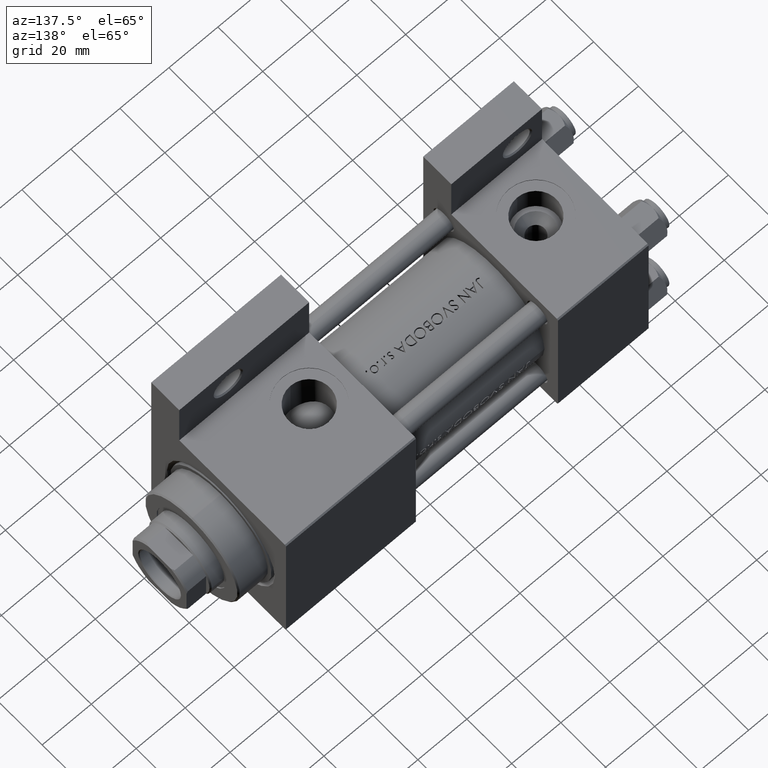
[diagram: clean part render]
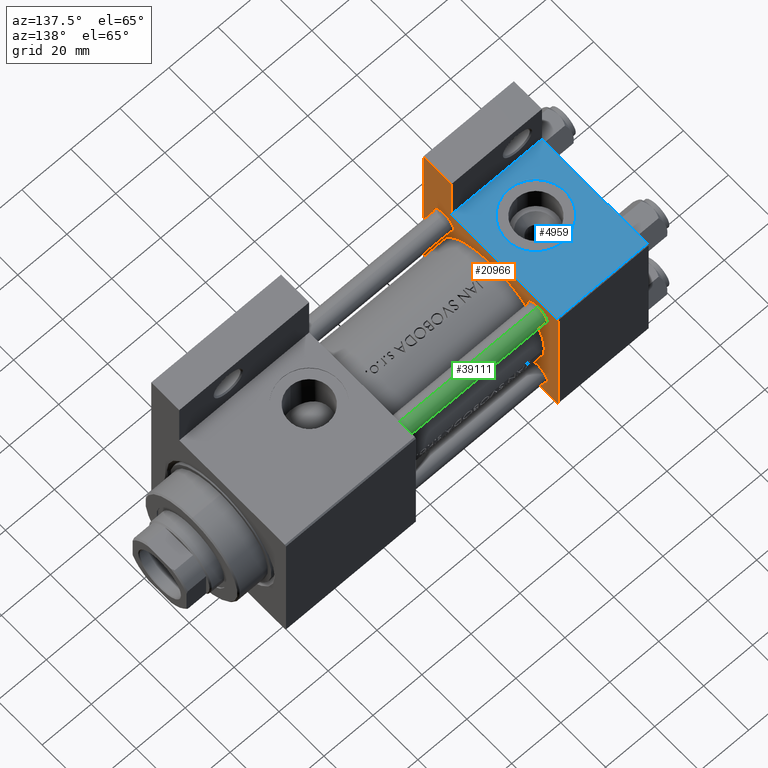
[diagram: same view with three faces highlighted in distinct colors, each labeled with its STEP entity id]
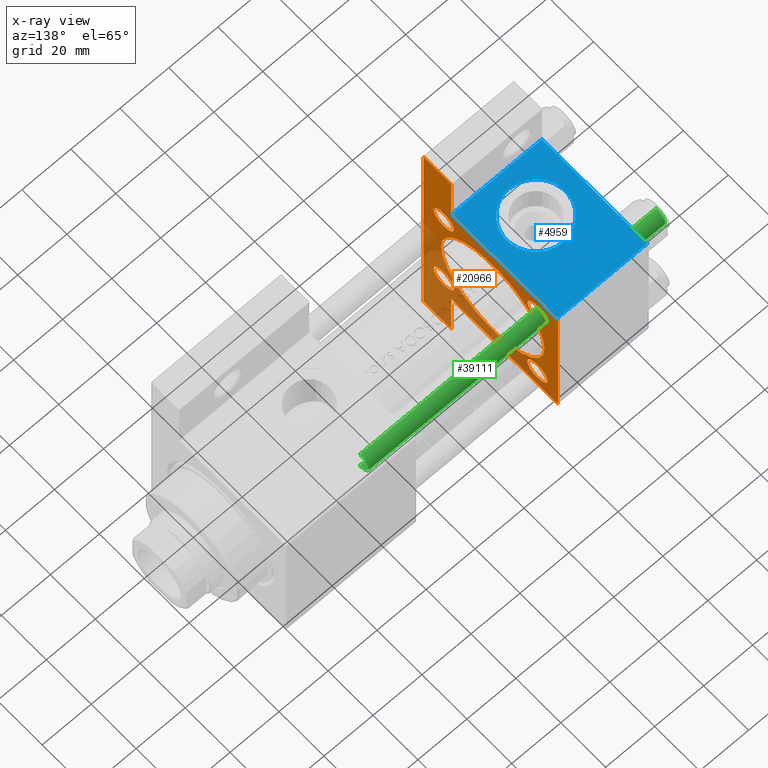
[diagram: x-ray of the same camera — body ghosted, the three highlighted faces saturated]
A machine part, auxiliary view with three faces highlighted in distinct colors.
The next image is the same camera in x-ray (body ghosted, the three faces saturated) — at least one of them is partly hidden behind the body in this view.
Their STEP definitions:

[orange] entity #20966 — the highlighted planar face has unit normal (-1, 0, -0).
#366 = DIRECTION ( 'NONE',  ( 0.000000000000000000, -1.000000000000000000, -1.156482317317871725E-16 ) ) ;
#448 = ORIENTED_EDGE ( 'NONE', *, *, #23480, .T. ) ;
#936 = CARTESIAN_POINT ( 'NONE',  ( 37.00000000000000000, -20.84999999999999076, 16.35000000000001208 ) ) ;
#1065 = EDGE_CURVE ( 'NONE', #37120, #42292, #45849, .T. ) ;
#1447 = ORIENTED_EDGE ( 'NONE', *, *, #14465, .F. ) ;
#1640 = ORIENTED_EDGE ( 'NONE', *, *, #28893, .T. ) ;
#1767 = DIRECTION ( 'NONE',  ( -1.000000000000000000, 0.000000000000000000, -0.000000000000000000 ) ) ;
#2316 = AXIS2_PLACEMENT_3D ( 'NONE', #21296, #13860, #7329 ) ;
#2422 = CIRCLE ( 'NONE', #31610, 4.499999999999990230 ) ;
#2638 = CARTESIAN_POINT ( 'NONE',  ( 37.00000000000000000, 29.49999999999999289, 30.00000000000000000 ) ) ;
#2811 = FACE_OUTER_BOUND ( 'NONE', #10163, .T. ) ;
#2879 = VERTEX_POINT ( 'NONE', #936 ) ;
#3173 = CIRCLE ( 'NONE', #7005, 4.499999999999990230 ) ;
#3615 = DIRECTION ( 'NONE',  ( -1.000000000000000000, 0.000000000000000000, -0.000000000000000000 ) ) ;
#4558 = EDGE_CURVE ( 'NONE', #40959, #44547, #25100, .T. ) ;
#4567 = CIRCLE ( 'NONE', #31481, 4.499999999999990230 ) ;
#4616 = ORIENTED_EDGE ( 'NONE', *, *, #37374, .T. ) ;
#5135 = DIRECTION ( 'NONE',  ( 0.000000000000000000, 0.000000000000000000, 1.000000000000000000 ) ) ;
#5636 = VERTEX_POINT ( 'NONE', #31811 ) ;
#5768 = VERTEX_POINT ( 'NONE', #36833 ) ;
#6644 = ORIENTED_EDGE ( 'NONE', *, *, #21083, .T. ) ;
#6896 = CARTESIAN_POINT ( 'NONE',  ( 37.00000000000000000, -30.00000000000000000, 29.49999999999999289 ) ) ;
#6970 = CIRCLE ( 'NONE', #33885, 23.00000000000000000 ) ;
#7005 = AXIS2_PLACEMENT_3D ( 'NONE', #33782, #44132, #36666 ) ;
#7036 = VECTOR ( 'NONE', #15321, 1000.000000000000000 ) ;
#7329 = DIRECTION ( 'NONE',  ( 0.000000000000000000, 0.000000000000000000, 1.000000000000000000 ) ) ;
#7609 = FACE_BOUND ( 'NONE', #26831, .T. ) ;
#7740 = CIRCLE ( 'NONE', #24639, 4.499999999999990230 ) ;
#8376 = ORIENTED_EDGE ( 'NONE', *, *, #20503, .T. ) ;
#8515 = LINE ( 'NONE', #31128, #17537 ) ;
#9467 = VECTOR ( 'NONE', #15573, 1000.000000000000000 ) ;
#9511 = CARTESIAN_POINT ( 'NONE',  ( 37.00000000000000000, 29.99999999999999289, 30.00000000000000000 ) ) ;
#9803 = ORIENTED_EDGE ( 'NONE', *, *, #47216, .F. ) ;
#10163 = EDGE_LOOP ( 'NONE', ( #25890, #448, #29003, #9803, #1640, #16156, #25317, #1447, #34053, #8376 ) ) ;
#10615 = DIRECTION ( 'NONE',  ( 0.000000000000000000, 0.000000000000000000, 1.000000000000000000 ) ) ;
#10722 = EDGE_LOOP ( 'NONE', ( #14657, #14529 ) ) ;
#11083 = AXIS2_PLACEMENT_3D ( 'NONE', #14235, #28909, #10615 ) ;
#12270 = CARTESIAN_POINT ( 'NONE',  ( 37.00000000000000000, 20.84999999999999787, -20.85000000000000142 ) ) ;
#12651 = CARTESIAN_POINT ( 'NONE',  ( 37.00000000000001421, 51.50000000000000711, 25.29310692155923590 ) ) ;
#12743 = DIRECTION ( 'NONE',  ( 0.000000000000000000, 0.000000000000000000, 1.000000000000000000 ) ) ;
#12892 = DIRECTION ( 'NONE',  ( -1.000000000000000000, 0.000000000000000000, -0.000000000000000000 ) ) ;
#13207 = CARTESIAN_POINT ( 'NONE',  ( 37.00000000000001421, 51.50000000000000000, -30.00000000000001421 ) ) ;
#13226 = AXIS2_PLACEMENT_3D ( 'NONE', #40036, #36675, #21765 ) ;
#13822 = VECTOR ( 'NONE', #20887, 1000.000000000000000 ) ;
#13860 = DIRECTION ( 'NONE',  ( -1.000000000000000000, 0.000000000000000000, -0.000000000000000000 ) ) ;
#13896 = CARTESIAN_POINT ( 'NONE',  ( 37.00000000000000000, 0.000000000000000000, 0.000000000000000000 ) ) ;
#14235 = CARTESIAN_POINT ( 'NONE',  ( 37.00000000000000000, -20.84999999999999076, -20.85000000000000497 ) ) ;
#14412 = VERTEX_POINT ( 'NONE', #45082 ) ;
#14465 = EDGE_CURVE ( 'NONE', #29213, #42498, #8515, .T. ) ;
#14529 = ORIENTED_EDGE ( 'NONE', *, *, #30167, .T. ) ;
#14535 = CARTESIAN_POINT ( 'NONE',  ( 37.00000000000000000, 0.000000000000000000, 1.000000000000000888 ) ) ;
#14657 = ORIENTED_EDGE ( 'NONE', *, *, #42607, .T. ) ;
#15321 = DIRECTION ( 'NONE',  ( 0.000000000000000000, -1.734723475976807094E-16, -1.000000000000000000 ) ) ;
#15483 = VERTEX_POINT ( 'NONE', #31192 ) ;
#15573 = DIRECTION ( 'NONE',  ( -0.000000000000000000, 1.000000000000000000, 0.000000000000000000 ) ) ;
#16135 = DIRECTION ( 'NONE',  ( -1.000000000000000000, 0.000000000000000000, -0.000000000000000000 ) ) ;
#16156 = ORIENTED_EDGE ( 'NONE', *, *, #21665, .F. ) ;
#16519 = CARTESIAN_POINT ( 'NONE',  ( 37.00000000000000000, 20.84999999999999787, -20.85000000000000142 ) ) ;
#16591 = CARTESIAN_POINT ( 'NONE',  ( 37.00000000000000000, 29.99999999999999289, -30.00000000000000000 ) ) ;
#17325 = ORIENTED_EDGE ( 'NONE', *, *, #35479, .T. ) ;
#17537 = VECTOR ( 'NONE', #45563, 1000.000000000000000 ) ;
#17640 = CARTESIAN_POINT ( 'NONE',  ( 37.00000000000000000, 29.49999999999999289, 30.00000000000000000 ) ) ;
#18120 = CARTESIAN_POINT ( 'NONE',  ( 37.00000000000000000, 2.816687638038911957E-15, -22.00000000000000000 ) ) ;
#18422 = ORIENTED_EDGE ( 'NONE', *, *, #40859, .T. ) ;
#18851 = EDGE_CURVE ( 'NONE', #46420, #28180, #21782, .T. ) ;
#19654 = CARTESIAN_POINT ( 'NONE',  ( 37.00000000000000000, 29.99999999999999289, 29.50000000000000000 ) ) ;
#20503 = EDGE_CURVE ( 'NONE', #21865, #46420, #35607, .T. ) ;
#20866 = CARTESIAN_POINT ( 'NONE',  ( 37.00000000000000000, 0.000000000000000000, 1.000000000000000888 ) ) ;
#20887 = DIRECTION ( 'NONE',  ( 0.000000000000000000, -1.000000000000000000, -1.156482317317871725E-16 ) ) ;
#20966 = ADVANCED_FACE ( 'NONE', ( #29278, #43948, #40558, #7609, #22294, #2811 ), #46853, .F. ) ;
#21077 = EDGE_CURVE ( 'NONE', #21865, #29213, #31884, .T. ) ;
#21083 = EDGE_CURVE ( 'NONE', #14412, #37954, #4567, .T. ) ;
#21128 = CARTESIAN_POINT ( 'NONE',  ( 37.00000000000000000, -30.00000000000000000, 29.49999999999999289 ) ) ;
#21296 = CARTESIAN_POINT ( 'NONE',  ( 37.00000000000000000, 20.84999999999999787, 20.85000000000000142 ) ) ;
#21583 = DIRECTION ( 'NONE',  ( -0.000000000000000000, -0.7071067811865474617, -0.7071067811865474617 ) ) ;
#21665 = EDGE_CURVE ( 'NONE', #35784, #27007, #27635, .T. ) ;
#21765 = DIRECTION ( 'NONE',  ( 0.000000000000000000, 0.000000000000000000, 1.000000000000000000 ) ) ;
#21782 = LINE ( 'NONE', #47535, #43681 ) ;
#21865 = VERTEX_POINT ( 'NONE', #19654 ) ;
#22229 = AXIS2_PLACEMENT_3D ( 'NONE', #13896, #28566, #43233 ) ;
#22294 = FACE_BOUND ( 'NONE', #35237, .T. ) ;
#22341 = AXIS2_PLACEMENT_3D ( 'NONE', #40167, #3615, #39453 ) ;
#22623 = CIRCLE ( 'NONE', #11083, 4.499999999999990230 ) ;
#23026 = VECTOR ( 'NONE', #46563, 1000.000000000000000 ) ;
#23480 = EDGE_CURVE ( 'NONE', #28180, #40959, #39847, .T. ) ;
#24639 = AXIS2_PLACEMENT_3D ( 'NONE', #12270, #16135, #12743 ) ;
#25094 = AXIS2_PLACEMENT_3D ( 'NONE', #14535, #44111, #25845 ) ;
#25100 = LINE ( 'NONE', #32087, #29563 ) ;
#25244 = EDGE_LOOP ( 'NONE', ( #4616, #43511 ) ) ;
#25317 = ORIENTED_EDGE ( 'NONE', *, *, #26519, .F. ) ;
#25421 = DIRECTION ( 'NONE',  ( 1.000000000000000000, -0.000000000000000000, 0.000000000000000000 ) ) ;
#25845 = DIRECTION ( 'NONE',  ( 0.000000000000000000, 0.000000000000000000, 1.000000000000000000 ) ) ;
#25890 = ORIENTED_EDGE ( 'NONE', *, *, #18851, .T. ) ;
#25892 = VERTEX_POINT ( 'NONE', #32573 ) ;
#26519 = EDGE_CURVE ( 'NONE', #42498, #35784, #37666, .T. ) ;
#26831 = EDGE_LOOP ( 'NONE', ( #31863, #17325 ) ) ;
#27007 = VERTEX_POINT ( 'NONE', #30581 ) ;
#27566 = DIRECTION ( 'NONE',  ( 0.000000000000000000, 0.000000000000000000, 1.000000000000000000 ) ) ;
#27635 = LINE ( 'NONE', #16591, #13822 ) ;
#28180 = VERTEX_POINT ( 'NONE', #43083 ) ;
#28384 = DIRECTION ( 'NONE',  ( 0.000000000000000000, -0.7071067811865474617, 0.7071067811865474617 ) ) ;
#28486 = CIRCLE ( 'NONE', #22341, 4.499999999999990230 ) ;
#28566 = DIRECTION ( 'NONE',  ( -1.000000000000000000, 0.000000000000000000, -0.000000000000000000 ) ) ;
#28653 = VECTOR ( 'NONE', #46479, 1000.000000000000000 ) ;
#28893 = EDGE_CURVE ( 'NONE', #5768, #27007, #30434, .T. ) ;
#28909 = DIRECTION ( 'NONE',  ( -1.000000000000000000, 0.000000000000000000, -0.000000000000000000 ) ) ;
#29003 = ORIENTED_EDGE ( 'NONE', *, *, #4558, .T. ) ;
#29213 = VERTEX_POINT ( 'NONE', #39413 ) ;
#29278 = FACE_BOUND ( 'NONE', #10722, .T. ) ;
#29563 = VECTOR ( 'NONE', #39755, 1000.000000000000000 ) ;
#30167 = EDGE_CURVE ( 'NONE', #38956, #25892, #22623, .T. ) ;
#30434 = LINE ( 'NONE', #42384, #28653 ) ;
#30581 = CARTESIAN_POINT ( 'NONE',  ( 37.00000000000000000, -51.50000000000000000, -29.99999999999999289 ) ) ;
#31128 = CARTESIAN_POINT ( 'NONE',  ( 37.00000000000001421, 51.50000000000000711, -17.49999999999999645 ) ) ;
#31192 = CARTESIAN_POINT ( 'NONE',  ( 37.00000000000000000, -20.84999999999999076, 25.34999999999999432 ) ) ;
#31481 = AXIS2_PLACEMENT_3D ( 'NONE', #16519, #12892, #27566 ) ;
#31610 = AXIS2_PLACEMENT_3D ( 'NONE', #38087, #1767, #5135 ) ;
#31811 = CARTESIAN_POINT ( 'NONE',  ( 37.00000000000000000, 20.84999999999999787, 25.34999999999999076 ) ) ;
#31863 = ORIENTED_EDGE ( 'NONE', *, *, #39389, .T. ) ;
#31884 = LINE ( 'NONE', #9511, #23026 ) ;
#32087 = CARTESIAN_POINT ( 'NONE',  ( 37.00000000000000000, -30.00000000000000000, 29.99999999999999289 ) ) ;
#32573 = CARTESIAN_POINT ( 'NONE',  ( 37.00000000000000000, -20.84999999999999076, -25.34999999999999432 ) ) ;
#33028 = VECTOR ( 'NONE', #28384, 1000.000000000000114 ) ;
#33422 = VERTEX_POINT ( 'NONE', #44368 ) ;
#33782 = CARTESIAN_POINT ( 'NONE',  ( 37.00000000000000000, 20.84999999999999787, 20.85000000000000142 ) ) ;
#33885 = AXIS2_PLACEMENT_3D ( 'NONE', #20866, #25421, #36241 ) ;
#33903 = CARTESIAN_POINT ( 'NONE',  ( 37.00000000000000000, 0.000000000000000000, 24.00000000000000000 ) ) ;
#34053 = ORIENTED_EDGE ( 'NONE', *, *, #21077, .F. ) ;
#35088 = CARTESIAN_POINT ( 'NONE',  ( 37.00000000000000000, -20.84999999999999076, -16.35000000000001208 ) ) ;
#35237 = EDGE_LOOP ( 'NONE', ( #46978, #45824 ) ) ;
#35479 = EDGE_CURVE ( 'NONE', #5636, #33422, #39190, .T. ) ;
#35607 = LINE ( 'NONE', #2638, #33028 ) ;
#35784 = VERTEX_POINT ( 'NONE', #13207 ) ;
#36016 = CARTESIAN_POINT ( 'NONE',  ( 37.00000000000001421, 51.50000000000000000, -17.49999999999999645 ) ) ;
#36241 = DIRECTION ( 'NONE',  ( 0.000000000000000000, 0.000000000000000000, 1.000000000000000000 ) ) ;
#36666 = DIRECTION ( 'NONE',  ( 0.000000000000000000, 0.000000000000000000, 1.000000000000000000 ) ) ;
#36675 = DIRECTION ( 'NONE',  ( -1.000000000000000000, 0.000000000000000000, -0.000000000000000000 ) ) ;
#36833 = CARTESIAN_POINT ( 'NONE',  ( 37.00000000000000000, -51.50000000000000000, -17.49999999999999645 ) ) ;
#36921 = VECTOR ( 'NONE', #21583, 1000.000000000000114 ) ;
#37120 = VERTEX_POINT ( 'NONE', #18120 ) ;
#37197 = CARTESIAN_POINT ( 'NONE',  ( 37.00000000000000000, -51.49999999999999289, -17.49999999999999645 ) ) ;
#37374 = EDGE_CURVE ( 'NONE', #2879, #15483, #28486, .T. ) ;
#37666 = LINE ( 'NONE', #12651, #7036 ) ;
#37954 = VERTEX_POINT ( 'NONE', #38401 ) ;
#38087 = CARTESIAN_POINT ( 'NONE',  ( 37.00000000000000000, -20.84999999999999076, -20.85000000000000497 ) ) ;
#38401 = CARTESIAN_POINT ( 'NONE',  ( 37.00000000000000000, 20.84999999999999787, -25.34999999999999076 ) ) ;
#38956 = VERTEX_POINT ( 'NONE', #35088 ) ;
#39190 = CIRCLE ( 'NONE', #2316, 4.499999999999990230 ) ;
#39389 = EDGE_CURVE ( 'NONE', #33422, #5636, #3173, .T. ) ;
#39413 = CARTESIAN_POINT ( 'NONE',  ( 37.00000000000000711, 30.00000000000001066, -17.49999999999999645 ) ) ;
#39453 = DIRECTION ( 'NONE',  ( 0.000000000000000000, 0.000000000000000000, 1.000000000000000000 ) ) ;
#39755 = DIRECTION ( 'NONE',  ( 0.000000000000000000, 0.000000000000000000, -1.000000000000000000 ) ) ;
#39847 = LINE ( 'NONE', #6896, #36921 ) ;
#40036 = CARTESIAN_POINT ( 'NONE',  ( 37.00000000000000000, -20.84999999999999076, 20.85000000000000497 ) ) ;
#40068 = CIRCLE ( 'NONE', #13226, 4.499999999999990230 ) ;
#40167 = CARTESIAN_POINT ( 'NONE',  ( 37.00000000000000000, -20.84999999999999076, 20.85000000000000497 ) ) ;
#40558 = FACE_BOUND ( 'NONE', #25244, .T. ) ;
#40562 = LINE ( 'NONE', #37197, #9467 ) ;
#40859 = EDGE_CURVE ( 'NONE', #37954, #14412, #7740, .T. ) ;
#40959 = VERTEX_POINT ( 'NONE', #21128 ) ;
#41233 = EDGE_CURVE ( 'NONE', #42292, #37120, #6970, .T. ) ;
#42292 = VERTEX_POINT ( 'NONE', #33903 ) ;
#42384 = CARTESIAN_POINT ( 'NONE',  ( 37.00000000000000000, -51.49999999999999289, 25.29310692155925366 ) ) ;
#42498 = VERTEX_POINT ( 'NONE', #36016 ) ;
#42607 = EDGE_CURVE ( 'NONE', #25892, #38956, #2422, .T. ) ;
#42846 = EDGE_LOOP ( 'NONE', ( #18422, #6644 ) ) ;
#43083 = CARTESIAN_POINT ( 'NONE',  ( 37.00000000000000000, -29.49999999999998579, 29.99999999999999289 ) ) ;
#43233 = DIRECTION ( 'NONE',  ( -0.000000000000000000, 0.000000000000000000, 1.000000000000000000 ) ) ;
#43511 = ORIENTED_EDGE ( 'NONE', *, *, #43727, .T. ) ;
#43681 = VECTOR ( 'NONE', #366, 1000.000000000000000 ) ;
#43727 = EDGE_CURVE ( 'NONE', #15483, #2879, #40068, .T. ) ;
#43948 = FACE_BOUND ( 'NONE', #42846, .T. ) ;
#44111 = DIRECTION ( 'NONE',  ( 1.000000000000000000, -0.000000000000000000, 0.000000000000000000 ) ) ;
#44132 = DIRECTION ( 'NONE',  ( -1.000000000000000000, 0.000000000000000000, -0.000000000000000000 ) ) ;
#44368 = CARTESIAN_POINT ( 'NONE',  ( 37.00000000000000000, 20.84999999999999787, 16.35000000000001208 ) ) ;
#44547 = VERTEX_POINT ( 'NONE', #44889 ) ;
#44889 = CARTESIAN_POINT ( 'NONE',  ( 37.00000000000000000, -30.00000000000000000, -17.49999999999999645 ) ) ;
#45082 = CARTESIAN_POINT ( 'NONE',  ( 37.00000000000000000, 20.84999999999999787, -16.35000000000001208 ) ) ;
#45563 = DIRECTION ( 'NONE',  ( 3.227392513445224290E-16, 1.000000000000000000, 0.000000000000000000 ) ) ;
#45824 = ORIENTED_EDGE ( 'NONE', *, *, #1065, .F. ) ;
#45849 = CIRCLE ( 'NONE', #25094, 23.00000000000000000 ) ;
#46420 = VERTEX_POINT ( 'NONE', #17640 ) ;
#46479 = DIRECTION ( 'NONE',  ( 0.000000000000000000, -1.734723475976807094E-16, -1.000000000000000000 ) ) ;
#46563 = DIRECTION ( 'NONE',  ( 0.000000000000000000, 0.000000000000000000, -1.000000000000000000 ) ) ;
#46853 = PLANE ( 'NONE',  #22229 ) ;
#46978 = ORIENTED_EDGE ( 'NONE', *, *, #41233, .F. ) ;
#47216 = EDGE_CURVE ( 'NONE', #5768, #44547, #40562, .T. ) ;
#47535 = CARTESIAN_POINT ( 'NONE',  ( 37.00000000000000000, 29.99999999999999289, 30.00000000000000000 ) ) ;

[blue] entity #4959 — the highlighted planar face has unit normal (0, 0, -1).
#805 = ORIENTED_EDGE ( 'NONE', *, *, #4558, .F. ) ;
#1207 = CARTESIAN_POINT ( 'NONE',  ( 37.00000000000000000, -30.00000000000000000, 29.99999999999999289 ) ) ;
#1935 = LINE ( 'NONE', #17107, #8580 ) ;
#2269 = VECTOR ( 'NONE', #40263, 1000.000000000000000 ) ;
#2330 = CARTESIAN_POINT ( 'NONE',  ( 18.50000000000000000, -30.00000000000000000, -12.00000000000000178 ) ) ;
#4212 = ORIENTED_EDGE ( 'NONE', *, *, #38638, .T. ) ;
#4558 = EDGE_CURVE ( 'NONE', #40959, #44547, #25100, .T. ) ;
#4814 = DIRECTION ( 'NONE',  ( -0.000000000000000000, 1.000000000000000000, 0.000000000000000000 ) ) ;
#4959 = ADVANCED_FACE ( 'NONE', ( #34415, #20219 ), #38480, .F. ) ;
#7103 = EDGE_LOOP ( 'NONE', ( #32915, #805, #9620, #4212 ) ) ;
#8580 = VECTOR ( 'NONE', #20471, 1000.000000000000000 ) ;
#8867 = EDGE_CURVE ( 'NONE', #19730, #12106, #38923, .T. ) ;
#9620 = ORIENTED_EDGE ( 'NONE', *, *, #21188, .T. ) ;
#9732 = AXIS2_PLACEMENT_3D ( 'NONE', #12759, #19738, #27431 ) ;
#10449 = CARTESIAN_POINT ( 'NONE',  ( 37.00000000000000000, -30.00000000000000000, 29.49999999999999289 ) ) ;
#12106 = VERTEX_POINT ( 'NONE', #18193 ) ;
#12455 = ORIENTED_EDGE ( 'NONE', *, *, #8867, .F. ) ;
#12679 = AXIS2_PLACEMENT_3D ( 'NONE', #1207, #4814, #23587 ) ;
#12759 = CARTESIAN_POINT ( 'NONE',  ( 18.50000000000000000, -30.00000000000000000, 0.000000000000000000 ) ) ;
#15837 = VERTEX_POINT ( 'NONE', #19012 ) ;
#17107 = CARTESIAN_POINT ( 'NONE',  ( 0.000000000000000000, -30.00000000000000000, 29.99999999999999289 ) ) ;
#17773 = VECTOR ( 'NONE', #25511, 1000.000000000000000 ) ;
#18193 = CARTESIAN_POINT ( 'NONE',  ( 18.50000000000000000, -30.00000000000000000, 12.00000000000000178 ) ) ;
#18404 = CARTESIAN_POINT ( 'NONE',  ( 18.50000000000000000, -30.00000000000000000, 0.000000000000000000 ) ) ;
#19012 = CARTESIAN_POINT ( 'NONE',  ( 0.000000000000000000, -30.00000000000000000, 29.49999999999999289 ) ) ;
#19730 = VERTEX_POINT ( 'NONE', #2330 ) ;
#19738 = DIRECTION ( 'NONE',  ( 0.000000000000000000, -1.000000000000000000, -8.673617379884036705E-17 ) ) ;
#20219 = FACE_OUTER_BOUND ( 'NONE', #7103, .T. ) ;
#20471 = DIRECTION ( 'NONE',  ( 0.000000000000000000, 0.000000000000000000, -1.000000000000000000 ) ) ;
#21128 = CARTESIAN_POINT ( 'NONE',  ( 37.00000000000000000, -30.00000000000000000, 29.49999999999999289 ) ) ;
#21188 = EDGE_CURVE ( 'NONE', #40959, #15837, #24896, .T. ) ;
#23587 = DIRECTION ( 'NONE',  ( 0.000000000000000000, -0.000000000000000000, 1.000000000000000000 ) ) ;
#23766 = AXIS2_PLACEMENT_3D ( 'NONE', #18404, #25863, #40506 ) ;
#24896 = LINE ( 'NONE', #10449, #2269 ) ;
#25100 = LINE ( 'NONE', #32087, #29563 ) ;
#25511 = DIRECTION ( 'NONE',  ( -1.000000000000000000, 9.376883653928687363E-17, 0.000000000000000000 ) ) ;
#25863 = DIRECTION ( 'NONE',  ( 0.000000000000000000, -1.000000000000000000, -8.673617379884036705E-17 ) ) ;
#27431 = DIRECTION ( 'NONE',  ( 0.000000000000000000, 0.000000000000000000, -1.000000000000000000 ) ) ;
#28016 = VERTEX_POINT ( 'NONE', #45047 ) ;
#29563 = VECTOR ( 'NONE', #39755, 1000.000000000000000 ) ;
#29820 = LINE ( 'NONE', #40157, #17773 ) ;
#32087 = CARTESIAN_POINT ( 'NONE',  ( 37.00000000000000000, -30.00000000000000000, 29.99999999999999289 ) ) ;
#32915 = ORIENTED_EDGE ( 'NONE', *, *, #43081, .F. ) ;
#32996 = CIRCLE ( 'NONE', #23766, 12.00000000000000178 ) ;
#33323 = EDGE_CURVE ( 'NONE', #12106, #19730, #32996, .T. ) ;
#34062 = EDGE_LOOP ( 'NONE', ( #12455, #36122 ) ) ;
#34415 = FACE_BOUND ( 'NONE', #34062, .T. ) ;
#36122 = ORIENTED_EDGE ( 'NONE', *, *, #33323, .F. ) ;
#38480 = PLANE ( 'NONE',  #12679 ) ;
#38638 = EDGE_CURVE ( 'NONE', #15837, #28016, #1935, .T. ) ;
#38923 = CIRCLE ( 'NONE', #9732, 12.00000000000000178 ) ;
#39755 = DIRECTION ( 'NONE',  ( 0.000000000000000000, 0.000000000000000000, -1.000000000000000000 ) ) ;
#40157 = CARTESIAN_POINT ( 'NONE',  ( -7.145701223179007004E-16, -30.00000000000000355, -17.49999999999999289 ) ) ;
#40263 = DIRECTION ( 'NONE',  ( -1.000000000000000000, 0.000000000000000000, 0.000000000000000000 ) ) ;
#40506 = DIRECTION ( 'NONE',  ( 0.000000000000000000, 0.000000000000000000, -1.000000000000000000 ) ) ;
#40959 = VERTEX_POINT ( 'NONE', #21128 ) ;
#43081 = EDGE_CURVE ( 'NONE', #44547, #28016, #29820, .T. ) ;
#44547 = VERTEX_POINT ( 'NONE', #44889 ) ;
#44889 = CARTESIAN_POINT ( 'NONE',  ( 37.00000000000000000, -30.00000000000000000, -17.49999999999999645 ) ) ;
#45047 = CARTESIAN_POINT ( 'NONE',  ( -7.145701223179007990E-16, -29.99999999999999645, -17.49999999999999645 ) ) ;

[green] entity #39111 — the highlighted cylindrical surface (edge-blend (fillet) strip) has radius 4 mm, axis along (-1, -0, -0).
#122 = ORIENTED_EDGE ( 'NONE', *, *, #24828, .T. ) ;
#7849 = CARTESIAN_POINT ( 'NONE',  ( 0.000000000000000000, 0.000000000000000000, 121.5000000000000426 ) ) ;
#8050 = EDGE_CURVE ( 'NONE', #40424, #23545, #31970, .T. ) ;
#10364 = EDGE_CURVE ( 'NONE', #23545, #17549, #33358, .T. ) ;
#11236 = DIRECTION ( 'NONE',  ( -0.000000000000000000, -0.000000000000000000, -1.000000000000000000 ) ) ;
#12240 = CARTESIAN_POINT ( 'NONE',  ( -4.000000000000000000, 0.000000000000000000, 0.5000000000000559552 ) ) ;
#15094 = CARTESIAN_POINT ( 'NONE',  ( 0.000000000000000000, 0.000000000000000000, 122.0000000000000000 ) ) ;
#15328 = CARTESIAN_POINT ( 'NONE',  ( -4.000000000000000000, 0.000000000000000000, 122.0000000000000000 ) ) ;
#16245 = CARTESIAN_POINT ( 'NONE',  ( 0.000000000000000000, 0.000000000000000000, 0.5000000000000559552 ) ) ;
#17549 = VERTEX_POINT ( 'NONE', #25462 ) ;
#19409 = LINE ( 'NONE', #15328, #32436 ) ;
#19412 = FACE_OUTER_BOUND ( 'NONE', #35119, .T. ) ;
#19587 = ORIENTED_EDGE ( 'NONE', *, *, #45214, .F. ) ;
#20768 = CARTESIAN_POINT ( 'NONE',  ( 4.000000000000000000, 4.898587196589411843E-16, 121.5000000000000426 ) ) ;
#21606 = AXIS2_PLACEMENT_3D ( 'NONE', #15094, #11236, #25920 ) ;
#22767 = DIRECTION ( 'NONE',  ( 1.000000000000000000, 0.000000000000000000, 0.000000000000000000 ) ) ;
#23545 = VERTEX_POINT ( 'NONE', #20768 ) ;
#23682 = CARTESIAN_POINT ( 'NONE',  ( -4.000000000000000000, 0.000000000000000000, 121.5000000000000426 ) ) ;
#23925 = DIRECTION ( 'NONE',  ( 1.000000000000000000, 0.000000000000000000, 0.000000000000000000 ) ) ;
#24828 = EDGE_CURVE ( 'NONE', #17549, #31048, #38501, .T. ) ;
#25462 = CARTESIAN_POINT ( 'NONE',  ( 4.000000000000000000, 4.898587196589411843E-16, 0.5000000000000559552 ) ) ;
#25920 = DIRECTION ( 'NONE',  ( -1.000000000000000000, 0.000000000000000000, 0.000000000000000000 ) ) ;
#27297 = DIRECTION ( 'NONE',  ( -0.000000000000000000, -0.000000000000000000, 1.000000000000000000 ) ) ;
#29522 = CYLINDRICAL_SURFACE ( 'NONE', #21606, 4.000000000000000000 ) ;
#29749 = DIRECTION ( 'NONE',  ( 0.000000000000000000, 0.000000000000000000, -1.000000000000000000 ) ) ;
#31048 = VERTEX_POINT ( 'NONE', #12240 ) ;
#31970 = CIRCLE ( 'NONE', #43492, 4.000000000000000000 ) ;
#32436 = VECTOR ( 'NONE', #33840, 1000.000000000000000 ) ;
#33358 = LINE ( 'NONE', #36479, #40464 ) ;
#33840 = DIRECTION ( 'NONE',  ( -0.000000000000000000, -0.000000000000000000, -1.000000000000000000 ) ) ;
#35119 = EDGE_LOOP ( 'NONE', ( #45227, #39347, #122, #19587 ) ) ;
#36479 = CARTESIAN_POINT ( 'NONE',  ( 4.000000000000000000, 4.898587196589411843E-16, 122.0000000000000000 ) ) ;
#38501 = CIRCLE ( 'NONE', #45458, 4.000000000000000000 ) ;
#39111 = ADVANCED_FACE ( 'NONE', ( #19412 ), #29522, .T. ) ;
#39347 = ORIENTED_EDGE ( 'NONE', *, *, #10364, .T. ) ;
#40424 = VERTEX_POINT ( 'NONE', #23682 ) ;
#40464 = VECTOR ( 'NONE', #44657, 1000.000000000000000 ) ;
#43492 = AXIS2_PLACEMENT_3D ( 'NONE', #7849, #29749, #22767 ) ;
#44657 = DIRECTION ( 'NONE',  ( -0.000000000000000000, -0.000000000000000000, -1.000000000000000000 ) ) ;
#45214 = EDGE_CURVE ( 'NONE', #40424, #31048, #19409, .T. ) ;
#45227 = ORIENTED_EDGE ( 'NONE', *, *, #8050, .T. ) ;
#45458 = AXIS2_PLACEMENT_3D ( 'NONE', #16245, #27297, #23925 ) ;